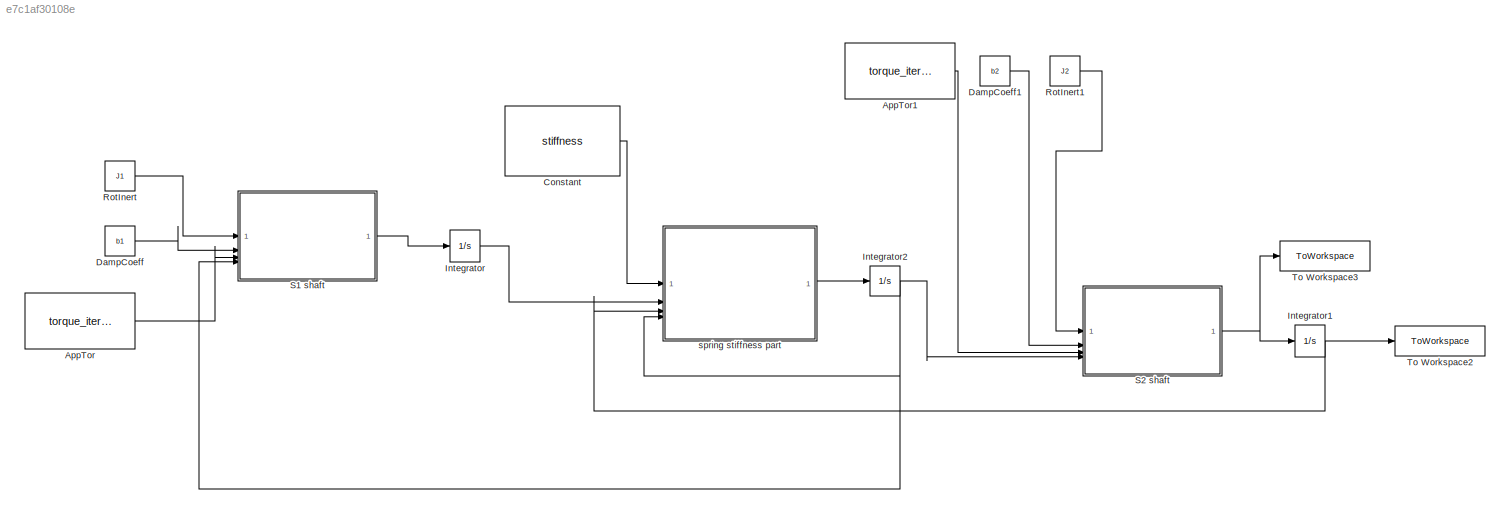
MODEL slx_e7c1af30108e
KIND model
CONFIG AbsTol = auto
CONFIG EnableMultiTasking = off
CONFIG FixedStep = auto
CONFIG MaxStep = auto
CONFIG MinStep = auto
CONFIG RelTol = 1e-3
CONFIG SampleTimeConstraint = Unconstrained
CONFIG SolverName = VariableStepAuto
CONFIG StartTime = 0.0
CONFIG StopTime = 10.0
BLOCK [Constant] AppTor
  Value = torque_iteration
BLOCK [Constant] AppTor1
  Value = torque_iteration2
BLOCK [Constant] Constant
  Value = stiffness
BLOCK [Constant] DampCoeff
  Value = b1
BLOCK [Constant] DampCoeff1
  Value = b2
BLOCK [Integrator] Integrator
  LimitOutput = on
  UpperSaturationLimit = 10
BLOCK [Integrator] Integrator1
  LimitOutput = on
  UpperSaturationLimit = 10
BLOCK [Integrator] Integrator2
  LimitOutput = on
  UpperSaturationLimit = 10
BLOCK [Constant] RotInert
  SampleTime = -1
  Value = J1
BLOCK [Constant] RotInert1
  SampleTime = -1
  Value = J2
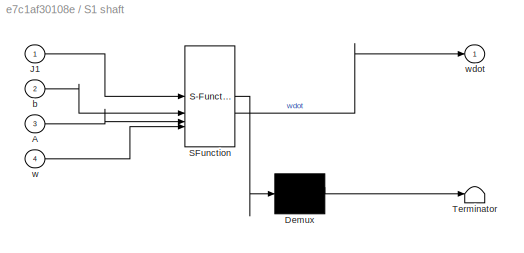
BLOCK [SubSystem] S1 shaft
  ErrorFcn = Stateflow.Translate.translate
  PermitHierarchicalResolution = ExplicitOnly
  SFBlockType = MATLAB Function
  TreatAsAtomicUnit = on
BLOCK [Demux] S1 shaft/ Demux 
  Outputs = 1
BLOCK [S-Function] S1 shaft/ SFunction 
  EnableBusSupport = on
  FunctionName = sf_sfun
  PortCounts = [4 2]
  SFcnIsStateOwnerBlock = off
  SFunctionDeploymentMode = off
  Tag = Stateflow S-Function 2
BLOCK [Terminator] S1 shaft/ Terminator 
BLOCK [Inport] S1 shaft/A
  Port = 3
BLOCK [Inport] S1 shaft/J1
BLOCK [Inport] S1 shaft/b
  Port = 2
BLOCK [Inport] S1 shaft/w
  Port = 4
BLOCK [Outport] S1 shaft/wdot
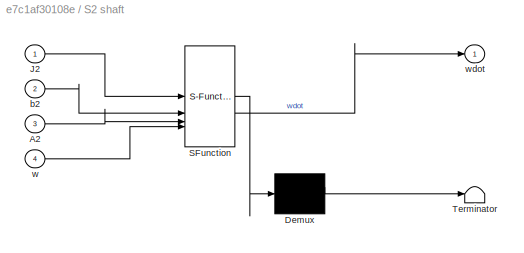
BLOCK [SubSystem] S2 shaft
  ErrorFcn = Stateflow.Translate.translate
  PermitHierarchicalResolution = ExplicitOnly
  SFBlockType = MATLAB Function
  TreatAsAtomicUnit = on
BLOCK [Demux] S2 shaft/ Demux 
  Outputs = 1
BLOCK [S-Function] S2 shaft/ SFunction 
  EnableBusSupport = on
  FunctionName = sf_sfun
  PortCounts = [4 2]
  SFcnIsStateOwnerBlock = off
  SFunctionDeploymentMode = off
  Tag = Stateflow S-Function 1
BLOCK [Terminator] S2 shaft/ Terminator 
BLOCK [Inport] S2 shaft/A2
  Port = 3
BLOCK [Inport] S2 shaft/J2
BLOCK [Inport] S2 shaft/b2
  Port = 2
BLOCK [Inport] S2 shaft/w
  Port = 4
BLOCK [Outport] S2 shaft/wdot
BLOCK [ToWorkspace] To Workspace2
  FixptAsFi = on
  MaxDataPoints = inf
  SampleTime = -1
  SaveFormat = Timeseries
  VariableName = w
BLOCK [ToWorkspace] To Workspace3
  FixptAsFi = on
  MaxDataPoints = inf
  SampleTime = -1
  SaveFormat = Timeseries
  VariableName = wdot
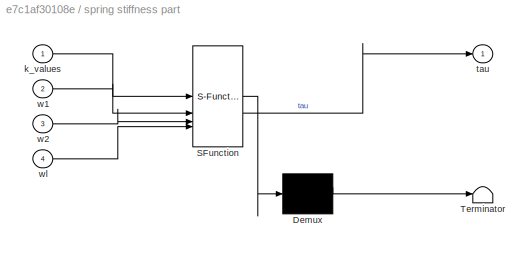
BLOCK [SubSystem] spring stiffness part
  ErrorFcn = Stateflow.Translate.translate
  PermitHierarchicalResolution = ExplicitOnly
  SFBlockType = MATLAB Function
  TreatAsAtomicUnit = on
BLOCK [Demux] spring stiffness part/ Demux 
  Outputs = 1
BLOCK [S-Function] spring stiffness part/ SFunction 
  EnableBusSupport = on
  FunctionName = sf_sfun
  PortCounts = [4 2]
  SFcnIsStateOwnerBlock = off
  SFunctionDeploymentMode = off
  Tag = Stateflow S-Function 3
BLOCK [Terminator] spring stiffness part/ Terminator 
BLOCK [Inport] spring stiffness part/k_values
BLOCK [Outport] spring stiffness part/tau
BLOCK [Inport] spring stiffness part/w1
  Port = 2
BLOCK [Inport] spring stiffness part/w2
  Port = 3
BLOCK [Inport] spring stiffness part/wl
  Port = 4
LINE AppTor1:1 -> S2 shaft:3
LINE AppTor:1 -> S1 shaft:3
LINE Constant:1 -> spring stiffness part:1
LINE DampCoeff1:1 -> S2 shaft:2
LINE DampCoeff:1 -> S1 shaft:2
NET Integrator1:1 -> To Workspace2:1, spring stiffness part:3
NET Integrator2:1 -> S1 shaft:4, S2 shaft:4, spring stiffness part:4
LINE Integrator:1 -> spring stiffness part:2
LINE RotInert1:1 -> S2 shaft:1
LINE RotInert:1 -> S1 shaft:1
LINE S1 shaft:1 -> Integrator:1
NET S2 shaft:1 -> Integrator1:1, To Workspace3:1
LINE spring stiffness part:1 -> Integrator2:1
note: NET lines group one-source signal fan-out (src -> all destinations, sorted); 1:1 wires keep LINE
CHART S2 shaft states=1 transitions=1
  STATE_LABEL 'eML_blk_kernel()'
  STATE_LABEL 'SCRIPT:\nfunction wdot = fcn(J2, b2, A2, w)\n\nwdot = (1 / J2) * (A2 - b2*w);\n\n'
CHART S1 shaft states=1 transitions=1
  STATE_LABEL 'eML_blk_kernel()'
  STATE_LABEL 'SCRIPT:\nfunction wdot = fcn(J1, b, A, w)\n\nwdot = (1 / J1) * (A - b*w);\n\n'
CHART spring stiffness part states=1 transitions=1
  STATE_LABEL 'eML_blk_kernel()'
  STATE_LABEL 'SCRIPT:\nfunction tau = fcn(k_values, w1, w2, wl)\n\ntau = k_values*(w1 - w2 - wl);\n'
CHART  states=0 transitions=0
CHART  states=0 transitions=0
CHART  states=0 transitions=0
